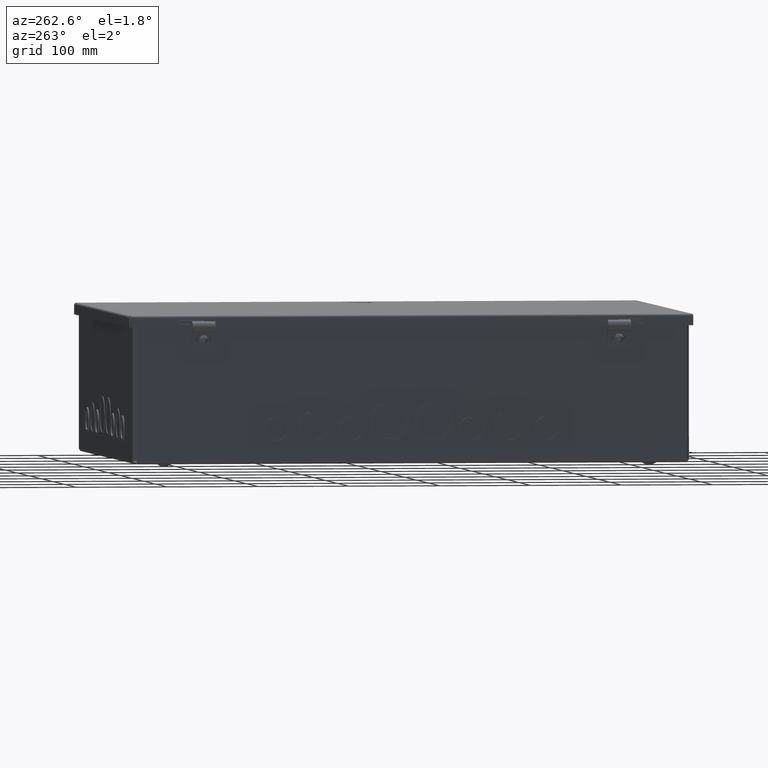
[diagram: clean part render]
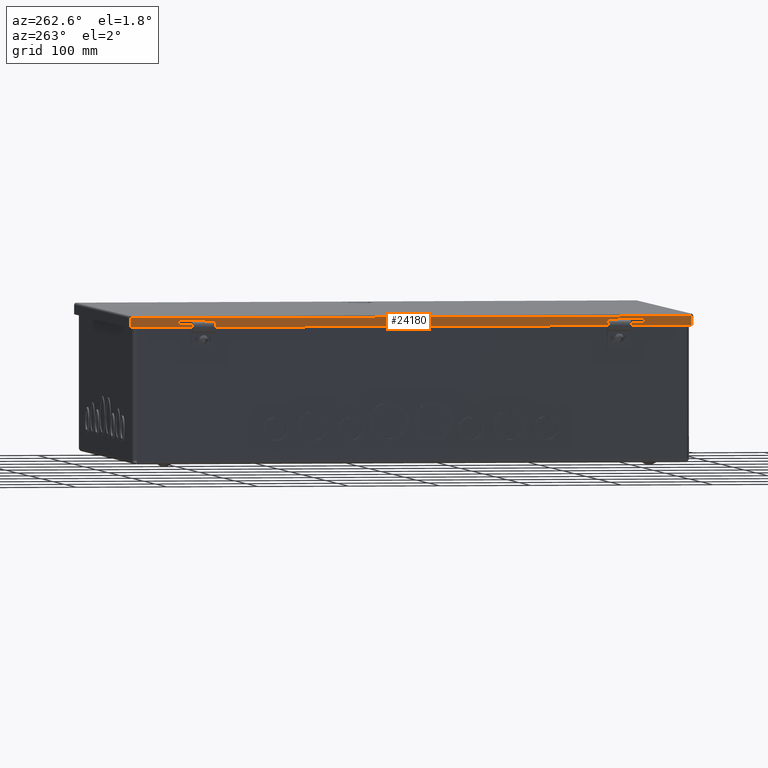
[diagram: same view with one face highlighted and labeled with its STEP entity id]
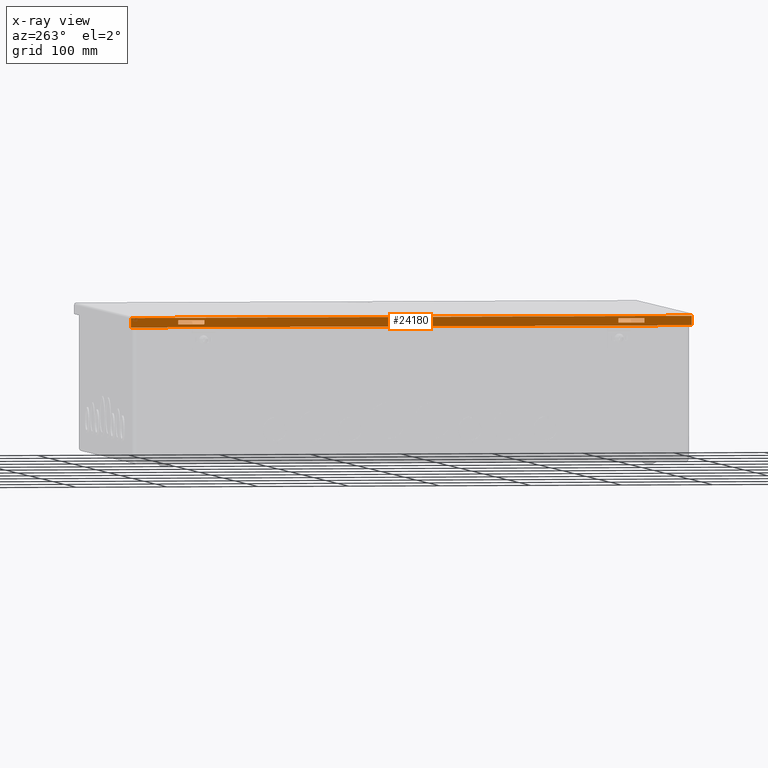
[diagram: x-ray of the same camera — body ghosted, the highlighted face saturated]
A machine part, auxiliary view. The second image highlights one B-rep face of the part: STEP entity #24180.
The next image is the same camera in x-ray: the body ghosted, the highlighted face saturated — about 0% of this face is hidden behind the body in this view.
In plain terms, the highlighted planar face has unit normal (-1, 0, 0).
Its self-contained STEP definition (entity closure, byte-faithful):
#2521=LINE($,#39654,#4901);
#2525=LINE($,#39662,#4905);
#2528=LINE($,#39668,#4908);
#2531=LINE($,#39673,#4911);
#2533=LINE($,#39678,#4913);
#2537=LINE($,#39686,#4917);
#2540=LINE($,#39692,#4920);
#2543=LINE($,#39697,#4923);
#2623=LINE($,#40024,#5003);
#2629=LINE($,#40053,#5009);
#2635=LINE($,#40115,#5015);
#2637=LINE($,#40118,#5017);
#4901=VECTOR($,#31657,1.125);
#4905=VECTOR($,#31663,0.1875);
#4908=VECTOR($,#31668,1.125);
#4911=VECTOR($,#31673,0.1875);
#4913=VECTOR($,#31677,1.125);
#4917=VECTOR($,#31683,0.1875);
#4920=VECTOR($,#31688,1.125);
#4923=VECTOR($,#31693,0.1875);
#5003=VECTOR($,#31963,24.2904029130879);
#5009=VECTOR($,#31973,0.40675);
#5015=VECTOR($,#31981,0.40675);
#5017=VECTOR($,#31985,24.2904029130879);
#5694=FACE_BOUND($,#8475,.T.);
#5695=FACE_BOUND($,#8476,.T.);
#5696=FACE_BOUND($,#8477,.T.);
#8475=EDGE_LOOP($,(#20535,#20536,#20537,#20538));
#8476=EDGE_LOOP($,(#20539,#20540,#20541,#20542));
#8477=EDGE_LOOP($,(#20543,#20544,#20545,#20546));
#10896=VERTEX_POINT($,#39652);
#10897=VERTEX_POINT($,#39653);
#10900=VERTEX_POINT($,#39661);
#10902=VERTEX_POINT($,#39667);
#10904=VERTEX_POINT($,#39676);
#10905=VERTEX_POINT($,#39677);
#10908=VERTEX_POINT($,#39685);
#10910=VERTEX_POINT($,#39691);
#10992=VERTEX_POINT($,#40022);
#10993=VERTEX_POINT($,#40023);
#11000=VERTEX_POINT($,#40052);
#11001=VERTEX_POINT($,#40114);
#13897=EDGE_CURVE($,#10896,#10897,#2521,.T.);
#13901=EDGE_CURVE($,#10900,#10896,#2525,.T.);
#13904=EDGE_CURVE($,#10902,#10900,#2528,.T.);
#13907=EDGE_CURVE($,#10897,#10902,#2531,.T.);
#13909=EDGE_CURVE($,#10904,#10905,#2533,.T.);
#13913=EDGE_CURVE($,#10908,#10904,#2537,.T.);
#13916=EDGE_CURVE($,#10910,#10908,#2540,.T.);
#13919=EDGE_CURVE($,#10905,#10910,#2543,.T.);
#14049=EDGE_CURVE($,#10992,#10993,#2623,.T.);
#14057=EDGE_CURVE($,#11000,#10993,#2629,.T.);
#14065=EDGE_CURVE($,#10992,#11001,#2635,.T.);
#14067=EDGE_CURVE($,#11001,#11000,#2637,.T.);
#20535=ORIENTED_EDGE($,*,*,#13897,.T.);
#20536=ORIENTED_EDGE($,*,*,#13907,.T.);
#20537=ORIENTED_EDGE($,*,*,#13904,.T.);
#20538=ORIENTED_EDGE($,*,*,#13901,.T.);
#20539=ORIENTED_EDGE($,*,*,#13909,.T.);
#20540=ORIENTED_EDGE($,*,*,#13919,.T.);
#20541=ORIENTED_EDGE($,*,*,#13916,.T.);
#20542=ORIENTED_EDGE($,*,*,#13913,.T.);
#20543=ORIENTED_EDGE($,*,*,#14049,.T.);
#20544=ORIENTED_EDGE($,*,*,#14057,.F.);
#20545=ORIENTED_EDGE($,*,*,#14067,.F.);
#20546=ORIENTED_EDGE($,*,*,#14065,.F.);
#21608=PLANE($,#26020);
#24180=ADVANCED_FACE($,(#5694,#5695,#5696),#21608,.T.);
#26020=AXIS2_PLACEMENT_3D($,#40119,#31986,#31987);
#31657=DIRECTION($,(-2.30771379513847E-016,1.,-3.49676543189026E-016));
#31663=DIRECTION($,(-5.38857853151968E-015,-1.24115488431961E-030,-1.));
#31668=DIRECTION($,(2.30771379513845E-016,-1.,-2.37481701787679E-033));
#31673=DIRECTION($,(5.38857853151968E-015,1.24115488431961E-030,1.));
#31677=DIRECTION($,(-2.30771379513845E-016,1.,2.37481701787679E-033));
#31683=DIRECTION($,(-5.38857853151968E-015,-1.24115488431961E-030,-1.));
#31688=DIRECTION($,(2.30771379513845E-016,-1.,-2.37481701787679E-033));
#31693=DIRECTION($,(5.38857853151968E-015,1.24115488431961E-030,1.));
#31963=DIRECTION($,(-2.30771379513845E-016,1.,3.07027691170851E-034));
#31973=DIRECTION($,(5.39030285815812E-015,1.23259516440783E-030,1.));
#31981=DIRECTION($,(-5.39030285815812E-015,-1.23259516440783E-030,-1.));
#31985=DIRECTION($,(-2.30714420248429E-016,1.,3.83753810209693E-019));
#31986=DIRECTION('center_axis',(-1.,-2.30771379513845E-016,5.38857853151968E-015));
#31987=DIRECTION('ref_axis',(4.51194637207664E-015,-2.30714420248428E-016,
1.));
#39652=CARTESIAN_POINT('',(-9.21825,8.96825,-0.313));
#39653=CARTESIAN_POINT('',(-9.21825,10.09325,-0.313));
#39654=CARTESIAN_POINT($,(-9.21825,4.484125,-0.312999999999998));
#39661=CARTESIAN_POINT('',(-9.21825,8.96825,-0.1255));
#39662=CARTESIAN_POINT($,(-9.21825,8.96825,-0.162933273678494));
#39667=CARTESIAN_POINT('',(-9.21825,10.09325,-0.1255));
#39668=CARTESIAN_POINT($,(-9.21825,5.046625,-0.1255));
#39673=CARTESIAN_POINT($,(-9.21825,10.09325,-0.256683273678494));
#39676=CARTESIAN_POINT('',(-9.21825,-10.09325,-0.312999999999999));
#39677=CARTESIAN_POINT('',(-9.21825,-8.96825,-0.312999999999999));
#39678=CARTESIAN_POINT($,(-9.21825,-5.046625,-0.312999999999999));
#39685=CARTESIAN_POINT('',(-9.21825,-10.09325,-0.125499999999999));
#39686=CARTESIAN_POINT($,(-9.21825,-10.09325,-0.162933273678494));
#39691=CARTESIAN_POINT('',(-9.21825,-8.96825,-0.125499999999999));
#39692=CARTESIAN_POINT($,(-9.21825,-4.484125,-0.125499999999999));
#39697=CARTESIAN_POINT($,(-9.21825,-8.96825,-0.256683273678494));
#40022=CARTESIAN_POINT('',(-9.21825,-12.145201456544,-0.0312499999999995));
#40023=CARTESIAN_POINT('',(-9.21825,12.145201456544,-0.0312499999999995));
#40024=CARTESIAN_POINT($,(-9.21825,-4.09304408163573E-016,-0.0312499999999995));
#40052=CARTESIAN_POINT('',(-9.21825,12.145201456544,-0.438));
#40053=CARTESIAN_POINT($,(-9.21825,12.145201456544,-0.0312499999999995));
#40114=CARTESIAN_POINT('',(-9.21825,-12.145201456544,-0.438));
#40115=CARTESIAN_POINT($,(-9.21825,-12.145201456544,-0.0312499999999995));
#40118=CARTESIAN_POINT($,(-9.21825,-12.145201456544,-0.438));
#40119=CARTESIAN_POINT('Origin',(-9.21825,-7.97091882053839E-016,-0.200366547356988));